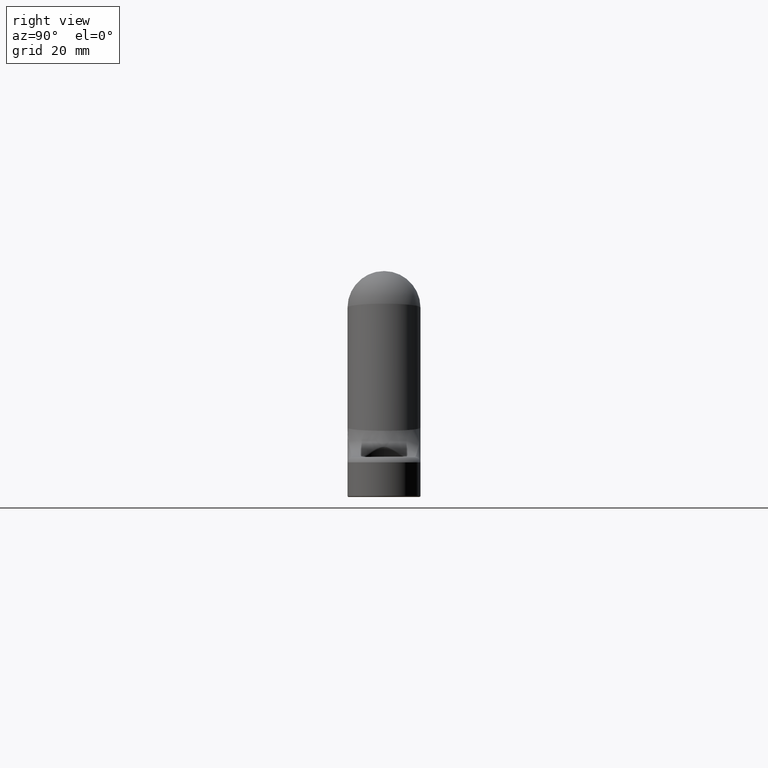
[diagram: clean part render]
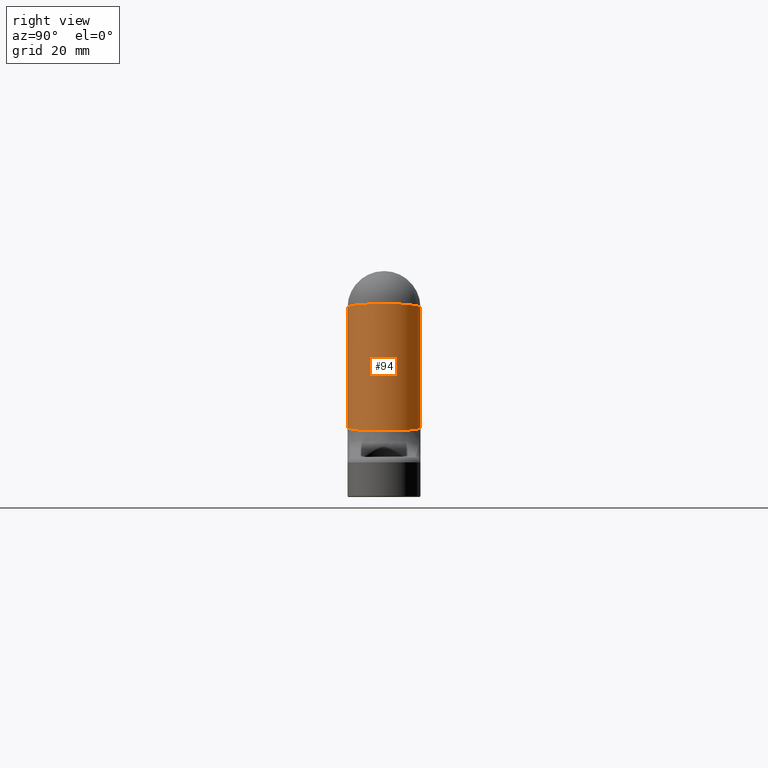
[diagram: same view with one face highlighted and labeled with its STEP entity id]
A machine part, right view. The second image highlights one B-rep face of the part: STEP entity #94.
In plain terms, the highlighted cylindrical surface (edge-blend (fillet) strip) has radius 10 mm, axis along (0.1045, -0, -0.9945).
Its self-contained STEP definition (entity closure, byte-faithful):
#94=ADVANCED_FACE('',(#667),#666,.T.);
#666=CYLINDRICAL_SURFACE('',#2329,1.00000000000E+01);
#667=FACE_OUTER_BOUND('',#2330,.T.);
#2326=CARTESIAN_POINT('',(6.28012886068E+01,6.93889390391E-15,6.60068141272E+00));
#2327=DIRECTION('',(1.04528463268E-01,-0.00000000000E+00,-9.94521895368E-01));
#2328=DIRECTION('',(-9.94484027022E-01,-8.72653549837E-03,-1.04524483144E-01));
#2329=AXIS2_PLACEMENT_3D('',#2326,#2327,#2328);
#2330=EDGE_LOOP('',(#2860,#2861,#2862,#2863));
#2860=ORIENTED_EDGE('',*,*,#3128,.T.);
#2861=ORIENTED_EDGE('',*,*,#3125,.T.);
#2862=ORIENTED_EDGE('',*,*,#3129,.T.);
#2863=ORIENTED_EDGE('',*,*,#3119,.F.);
#3119=EDGE_CURVE('',#3890,#3911,#4064,.T.);
#3125=EDGE_CURVE('',#4103,#4104,#4105,.T.);
#3128=EDGE_CURVE('',#3890,#4103,#4124,.T.);
#3129=EDGE_CURVE('',#4104,#3911,#4130,.T.);
#3890=VERTEX_POINT('',#5063);
#3911=VERTEX_POINT('',#5098);
#4064=(BOUNDED_CURVE() B_SPLINE_CURVE(2,(#5217,#5218,#5219,#5220,#5221),.UNSPECIFIED.,.F.,.F.) B_SPLINE_CURVE_WITH_KNOTS((3,2,3),(-4.71238898038E+00,-3.14159265359E+00,-1.57079632679E+00),.UNSPECIFIED.) CURVE() GEOMETRIC_REPRESENTATION_ITEM() RATIONAL_B_SPLINE_CURVE((1.00000000000E+00,7.07106781187E-01,1.00000000000E+00,7.07106781187E-01,1.00000000000E+00)) REPRESENTATION_ITEM('') );
#4103=VERTEX_POINT('',#5245);
#4104=VERTEX_POINT('',#5246);
#4105=CIRCLE('',#5250,1.00000000000E+01);
#4124=LINE('',#5260,#5261);
#4130=LINE('',#5263,#5264);
#5063=CARTESIAN_POINT('',(6.69634879427E+01,1.00000000000E+01,-3.30000000000E+01));
#5098=CARTESIAN_POINT('',(6.69634879427E+01,-1.00000000000E+01,-3.30000000000E+01));
#5217=CARTESIAN_POINT('',(6.69634879427E+01,1.00000000000E+01,-3.30000000000E+01));
#5218=CARTESIAN_POINT('',(7.71064618119E+01,1.00000000000E+01,-3.38362277061E+01));
#5219=CARTESIAN_POINT('',(7.71064618119E+01,1.45960717471E-14,-3.38362277061E+01));
#5220=CARTESIAN_POINT('',(7.71064618119E+01,-1.00000000000E+01,-3.38362277061E+01));
#5221=CARTESIAN_POINT('',(6.69634879427E+01,-1.00000000000E+01,-3.30000000000E+01));
#5245=CARTESIAN_POINT('',(6.34950481789E+01,1.00000000000E+01,1.99493199737E-13));
#5246=CARTESIAN_POINT('',(6.34950481789E+01,-1.00000000000E+01,1.99493199737E-13));
#5247=CARTESIAN_POINT('',(6.34950481789E+01,6.93889390391E-15,1.99493199737E-13));
#5248=DIRECTION('',(1.04528463268E-01,0.00000000000E+00,-9.94521895368E-01));
#5249=DIRECTION('',(-1.82684674813E-16,1.00000000000E+00,-1.92009330409E-17));
#5250=AXIS2_PLACEMENT_3D('',#5247,#5248,#5249);
#5260=CARTESIAN_POINT('',(6.69634879427E+01,1.00000000000E+01,-3.30000000000E+01));
#5261=VECTOR('',#5262,3.31817732256E+01);
#5262=DIRECTION('',(-1.04528463268E-01,0.00000000000E+00,9.94521895368E-01));
#5263=CARTESIAN_POINT('',(6.34950481789E+01,-1.00000000000E+01,1.98951966013E-13));
#5264=VECTOR('',#5265,3.31817732256E+01);
#5265=DIRECTION('',(1.04528463268E-01,0.00000000000E+00,-9.94521895368E-01));